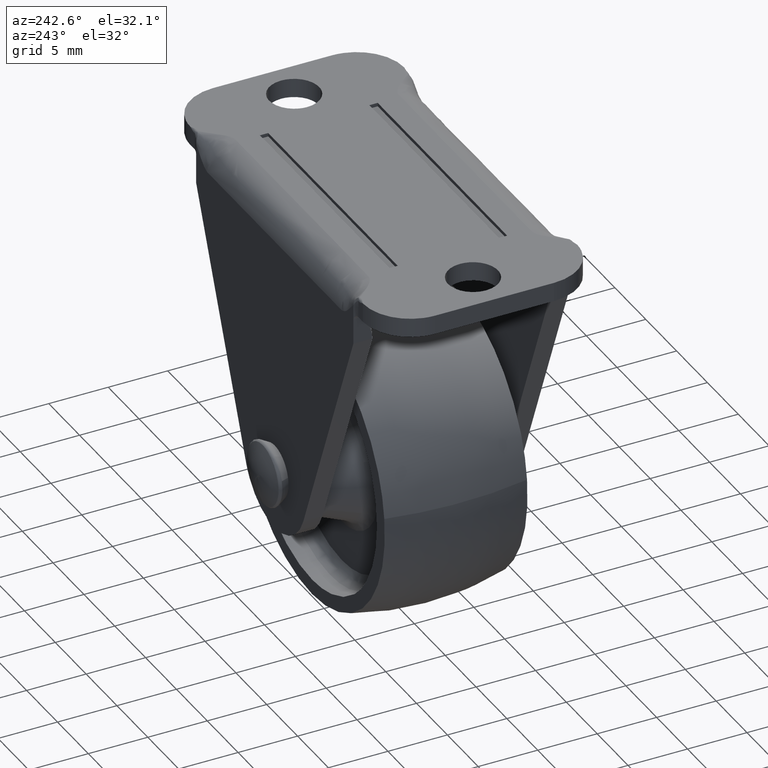
[diagram: clean part render]
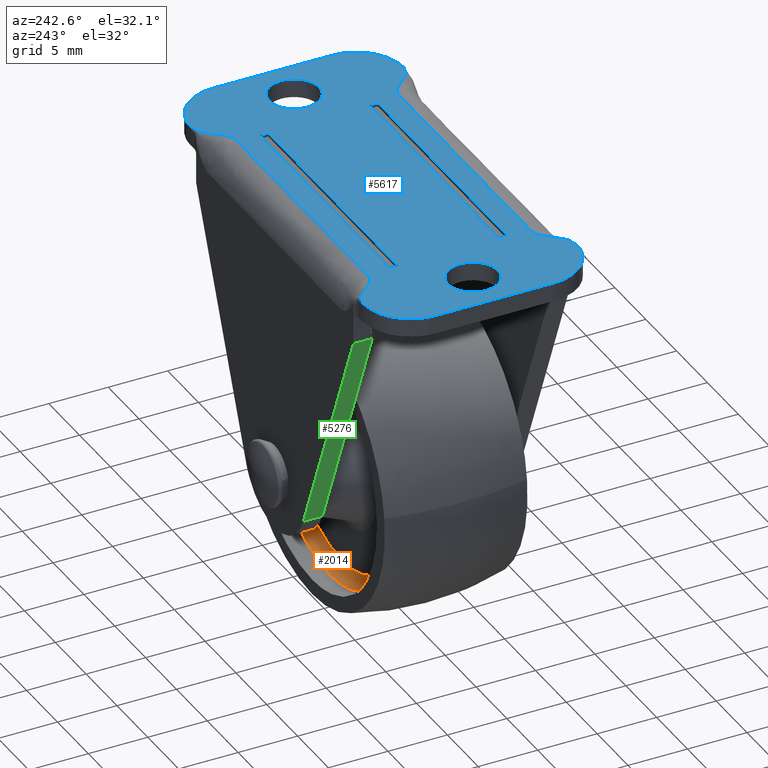
[diagram: same view with three faces highlighted in distinct colors, each labeled with its STEP entity id]
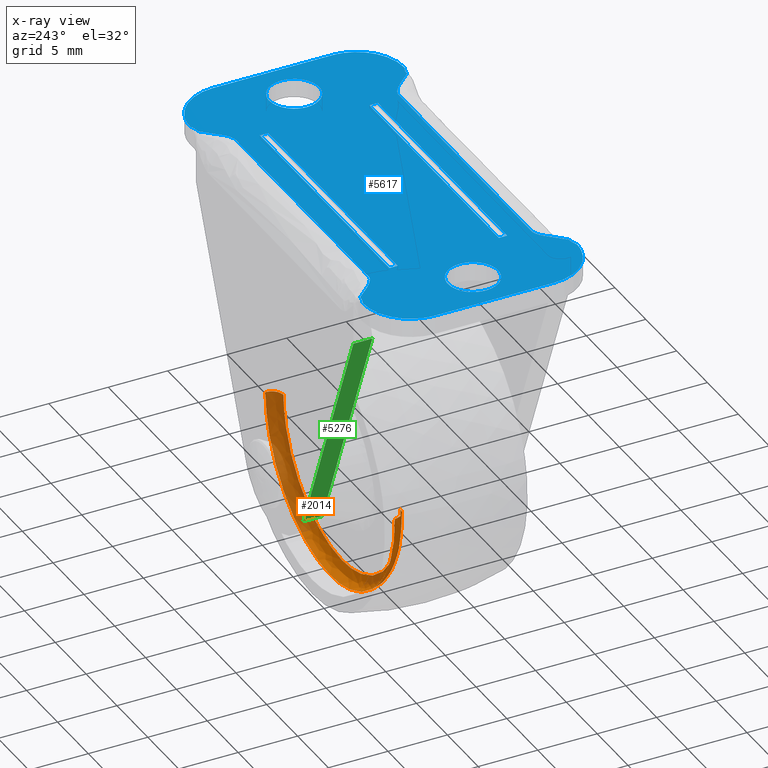
[diagram: x-ray of the same camera — body ghosted, the three highlighted faces saturated]
A machine part, auxiliary view with three faces highlighted in distinct colors.
The next image is the same camera in x-ray (body ghosted, the three faces saturated) — at least one of them is partly hidden behind the body in this view.
Their STEP definitions:

[orange] entity #2014 — the highlighted face is a freeform B-spline surface patch.
#971=CARTESIAN_POINT('',(-6.870565253109582,4.499999999999914,-7.940109136703408));
#972=VERTEX_POINT('',#971);
#978=CARTESIAN_POINT('',(0.0,4.499999999999915,-10.500000000000000));
#979=VERTEX_POINT('',#978);
#980=CARTESIAN_POINT('',(-6.870565253109582,4.499999999999914,-7.940109136703408));
#981=CARTESIAN_POINT('',(-3.912175064846057,4.499999999999916,-10.500000000000000));
#982=CARTESIAN_POINT('',(0.0,4.499999999999915,-10.500000000000000));
#990=(BOUNDED_CURVE()B_SPLINE_CURVE(2,(#980,#981,#982),.UNSPECIFIED.,.F.,.U.)B_SPLINE_CURVE_WITH_KNOTS((3,3),(0.885882141743669,1.0),.UNSPECIFIED.)CURVE()GEOMETRIC_REPRESENTATION_ITEM()RATIONAL_B_SPLINE_CURVE((0.854663301328648,0.866302612684823,1.0))REPRESENTATION_ITEM(''));
#991=EDGE_CURVE('',#972,#979,#990,.T.);
#993=CARTESIAN_POINT('',(10.496683987474089,4.499999999756547,-0.263866002177144));
#994=VERTEX_POINT('',#993);
#995=CARTESIAN_POINT('',(0.0,4.499999999999915,-10.500000000000000));
#996=CARTESIAN_POINT('',(10.239367699853679,4.499999999999914,-10.500000000000000));
#997=CARTESIAN_POINT('',(10.496683987474089,4.499999999756548,-0.263866002177144));
#1005=(BOUNDED_CURVE()B_SPLINE_CURVE(2,(#995,#996,#997),.UNSPECIFIED.,.F.,.U.)B_SPLINE_CURVE_WITH_KNOTS((3,3),(0.0,0.245579891769071),.UNSPECIFIED.)CURVE()GEOMETRIC_REPRESENTATION_ITEM()RATIONAL_B_SPLINE_CURVE((1.0,0.712285260095590,0.989826157679911))REPRESENTATION_ITEM(''));
#1006=EDGE_CURVE('',#979,#994,#1005,.T.);
#1114=CARTESIAN_POINT('',(-10.496683987474089,4.499999999756547,0.263866002177145));
#1115=VERTEX_POINT('',#1114);
#1129=CARTESIAN_POINT('',(-10.496683987474087,4.499999999756547,0.263866002177145));
#1130=CARTESIAN_POINT('',(-10.500000000000000,4.499999999999915,0.131953837317596));
#1131=CARTESIAN_POINT('',(-10.500000000000000,4.499999999999915,-8.061993E-016));
#1132=CARTESIAN_POINT('',(-10.500000000000002,4.499999999999916,-4.799564361928965));
#1133=CARTESIAN_POINT('',(-6.870565253109582,4.499999999999914,-7.940109136703408));
#1141=(BOUNDED_CURVE()B_SPLINE_CURVE(2,(#1129,#1130,#1131,#1132,#1133),.UNSPECIFIED.,.F.,.U.)B_SPLINE_CURVE_WITH_KNOTS((3,2,3),(0.745579891769071,0.750000000000000,0.885882141743669),.UNSPECIFIED.)CURVE()GEOMETRIC_REPRESENTATION_ITEM()RATIONAL_B_SPLINE_CURVE((0.989826157679911,0.994821521090957,1.0,0.840804168501724,0.854663301328648))REPRESENTATION_ITEM(''));
#1142=EDGE_CURVE('',#1115,#972,#1141,.T.);
#1926=CARTESIAN_POINT('',(-10.494251063480691,4.569724187343534,0.263804843228225));
#1927=CARTESIAN_POINT('',(-10.758055906708920,4.569724187343533,-10.230446220252464));
#1928=CARTESIAN_POINT('',(-0.263804843228228,4.569724187343534,-10.494251063480691));
#1929=CARTESIAN_POINT('',(10.230446220252462,4.569724187343533,-10.758055906708920));
#1930=CARTESIAN_POINT('',(10.494251063480691,4.569724187343534,-0.263804843228229));
#1931=CARTESIAN_POINT('',(-10.574398682234275,3.422664250343165,0.265819596817834));
#1932=CARTESIAN_POINT('',(-10.840218279052111,3.422664250343166,-10.308579085416437));
#1933=CARTESIAN_POINT('',(-0.265819596817837,3.422664250343165,-10.574398682234275));
#1934=CARTESIAN_POINT('',(10.308579085416437,3.422664250343166,-10.840218279052111));
#1935=CARTESIAN_POINT('',(10.574398682234275,3.422664250343165,-0.265819596817837));
#1936=CARTESIAN_POINT('',(-9.427671067277528,3.502407653517741,0.236993118695744));
#1937=CARTESIAN_POINT('',(-9.664664185973273,3.502407653517742,-9.190677948581778));
#1938=CARTESIAN_POINT('',(-0.236993118695747,3.502407653517741,-9.427671067277528));
#1939=CARTESIAN_POINT('',(9.190677948581778,3.502407653517742,-9.664664185973273));
#1940=CARTESIAN_POINT('',(9.427671067277528,3.502407653517741,-0.236993118695747));
#1948=(BOUNDED_SURFACE()B_SPLINE_SURFACE(2,2,((#1926,#1931,#1936),(#1927,#1932,#1937),(#1928,#1933,#1938),(#1929,#1934,#1939),(#1930,#1935,#1940)),.UNSPECIFIED.,.F.,.F.,.U.)B_SPLINE_SURFACE_WITH_KNOTS((3,2,3),(3,3),(0.0,17.392937345776598,34.785874691553197),(0.0,1.822370399371871),.UNSPECIFIED.)GEOMETRIC_REPRESENTATION_ITEM()RATIONAL_B_SPLINE_SURFACE(((0.910892942541887,0.599412921378678,0.915966645999969),(0.644098576606337,0.423848941437702,0.647686226727276),(0.910892942541887,0.599412921378678,0.915966645999969),(0.644098576606337,0.423848941437702,0.647686226727276),(0.910892942541887,0.599412921378678,0.915966645999969)))REPRESENTATION_ITEM('')SURFACE());
#1949=CARTESIAN_POINT('',(-9.496999799798440,3.499999999999915,0.238735906854155));
#1950=VERTEX_POINT('',#1949);
#1951=CARTESIAN_POINT('',(0.0,3.499999999999915,-9.500000000000000));
#1952=VERTEX_POINT('',#1951);
#1953=CARTESIAN_POINT('',(-9.496999799798440,3.499999999999916,0.238735906854155));
#1954=CARTESIAN_POINT('',(-9.500000000000000,3.499999999999915,0.119386805274140));
#1955=CARTESIAN_POINT('',(-9.500000000000000,3.499999999999915,-8.061993E-016));
#1956=CARTESIAN_POINT('',(-9.500000000000000,3.499999999999914,-9.500000000000000));
#1957=CARTESIAN_POINT('',(0.0,3.499999999999915,-9.500000000000000));
#1965=(BOUNDED_CURVE()B_SPLINE_CURVE(2,(#1953,#1954,#1955,#1956,#1957),.UNSPECIFIED.,.F.,.U.)B_SPLINE_CURVE_WITH_KNOTS((3,2,3),(0.745579891766049,0.750000000000000,1.0),.UNSPECIFIED.)CURVE()GEOMETRIC_REPRESENTATION_ITEM()RATIONAL_B_SPLINE_CURVE((0.989826157673082,0.994821521087418,1.0,0.707106781186548,1.0))REPRESENTATION_ITEM(''));
#1966=EDGE_CURVE('',#1950,#1952,#1965,.T.);
#1967=ORIENTED_EDGE('',*,*,#1966,.T.);
#1968=CARTESIAN_POINT('',(9.496999799798441,3.499999999999915,-0.238735906854152));
#1969=VERTEX_POINT('',#1968);
#1970=CARTESIAN_POINT('',(0.0,3.499999999999915,-9.500000000000000));
#1971=CARTESIAN_POINT('',(9.264189823517137,3.499999999999914,-9.499999999999998));
#1972=CARTESIAN_POINT('',(9.496999799798441,3.499999999999915,-0.238735906854152));
#1980=(BOUNDED_CURVE()B_SPLINE_CURVE(2,(#1970,#1971,#1972),.UNSPECIFIED.,.F.,.U.)B_SPLINE_CURVE_WITH_KNOTS((3,3),(0.0,0.245579891766050),.UNSPECIFIED.)CURVE()GEOMETRIC_REPRESENTATION_ITEM()RATIONAL_B_SPLINE_CURVE((1.0,0.712285260099130,0.989826157673082))REPRESENTATION_ITEM(''));
#1981=EDGE_CURVE('',#1952,#1969,#1980,.T.);
#1982=ORIENTED_EDGE('',*,*,#1981,.T.);
#1983=CARTESIAN_POINT('',(10.496683987474093,4.499999999756546,-0.263866002177144));
#1984=CARTESIAN_POINT('',(10.496683986988062,3.500000003220245,-0.263866002142810));
#1985=CARTESIAN_POINT('',(9.496999799798441,3.499999999999916,-0.238735906854152));
#1993=(BOUNDED_CURVE()B_SPLINE_CURVE(2,(#1983,#1984,#1985),.UNSPECIFIED.,.F.,.U.)B_SPLINE_CURVE_WITH_KNOTS((3,3),(-1.723441281483630,-0.263586882260754),.UNSPECIFIED.)CURVE()GEOMETRIC_REPRESENTATION_ITEM()RATIONAL_B_SPLINE_CURVE((0.883897566962041,0.626638727914770,0.888510407866817))REPRESENTATION_ITEM(''));
#1994=EDGE_CURVE('',#994,#1969,#1993,.T.);
#1995=ORIENTED_EDGE('',*,*,#1994,.F.);
#1996=ORIENTED_EDGE('',*,*,#1006,.F.);
#1997=ORIENTED_EDGE('',*,*,#991,.F.);
#1998=ORIENTED_EDGE('',*,*,#1142,.F.);
#1999=CARTESIAN_POINT('',(-10.496683987474091,4.499999999756547,0.263866002177145));
#2000=CARTESIAN_POINT('',(-10.496683986988064,3.500000003220245,0.263866002142812));
#2001=CARTESIAN_POINT('',(-9.496999799798440,3.499999999999915,0.238735906854155));
#2009=(BOUNDED_CURVE()B_SPLINE_CURVE(2,(#1999,#2000,#2001),.UNSPECIFIED.,.F.,.U.)B_SPLINE_CURVE_WITH_KNOTS((3,3),(-1.723441281483631,-0.263586882260751),.UNSPECIFIED.)CURVE()GEOMETRIC_REPRESENTATION_ITEM()RATIONAL_B_SPLINE_CURVE((0.883897566962041,0.626638727914770,0.888510407866817))REPRESENTATION_ITEM(''));
#2010=EDGE_CURVE('',#1115,#1950,#2009,.T.);
#2011=ORIENTED_EDGE('',*,*,#2010,.T.);
#2012=EDGE_LOOP('',(#1967,#1982,#1995,#1996,#1997,#1998,#2011));
#2013=FACE_OUTER_BOUND('',#2012,.T.);
#2014=ADVANCED_FACE('',(#2013),#1948,.F.);

[blue] entity #5617 — the highlighted face is a freeform B-spline surface patch.
#2486=CARTESIAN_POINT('',(-14.747871892840189,-2.085320005356449,22.500000000000000));
#2487=VERTEX_POINT('',#2486);
#2493=CARTESIAN_POINT('',(-12.400000000000000,0.0,22.500000000000000));
#2494=VERTEX_POINT('',#2493);
#2495=CARTESIAN_POINT('',(-14.747871892840188,-2.085320005356449,22.499999999999996));
#2496=CARTESIAN_POINT('',(-14.624370651330654,-2.100000000000001,22.500000000000000));
#2497=CARTESIAN_POINT('',(-14.500000000000000,-2.100000000000000,22.500000000000000));
#2498=CARTESIAN_POINT('',(-12.400000000000002,-2.100000000000000,22.500000000000000));
#2499=CARTESIAN_POINT('',(-12.400000000000000,0.0,22.500000000000000));
#2507=(BOUNDED_CURVE()B_SPLINE_CURVE(2,(#2495,#2496,#2497,#2498,#2499),.UNSPECIFIED.,.F.,.U.)B_SPLINE_CURVE_WITH_KNOTS((3,2,3),(0.229562473505758,0.250000000000000,0.500000000000000),.UNSPECIFIED.)CURVE()GEOMETRIC_REPRESENTATION_ITEM()RATIONAL_B_SPLINE_CURVE((0.956026754168508,0.976055948322065,1.0,0.707106781186548,1.0))REPRESENTATION_ITEM(''));
#2508=EDGE_CURVE('',#2487,#2494,#2507,.T.);
#2510=CARTESIAN_POINT('',(-14.371798066948950,2.096083076684217,22.500000000000000));
#2511=VERTEX_POINT('',#2510);
#2512=CARTESIAN_POINT('',(-12.400000000000000,0.0,22.500000000000000));
#2513=CARTESIAN_POINT('',(-12.400000000000002,1.975482740449377,22.500000000000004));
#2514=CARTESIAN_POINT('',(-14.371798066948953,2.096083076684217,22.499999999999996));
#2522=(BOUNDED_CURVE()B_SPLINE_CURVE(2,(#2512,#2513,#2514),.UNSPECIFIED.,.F.,.U.)B_SPLINE_CURVE_WITH_KNOTS((3,3),(0.500000000000000,0.739332962237384),.UNSPECIFIED.)CURVE()GEOMETRIC_REPRESENTATION_ITEM()RATIONAL_B_SPLINE_CURVE((1.0,0.719603993288536,0.976072041663377))REPRESENTATION_ITEM(''));
#2523=EDGE_CURVE('',#2494,#2511,#2522,.T.);
#2597=CARTESIAN_POINT('',(-16.600000000000001,0.0,22.500000000000000));
#2598=VERTEX_POINT('',#2597);
#2599=CARTESIAN_POINT('',(-14.371798066948955,2.096083076684217,22.499999999999996));
#2600=CARTESIAN_POINT('',(-14.435839197045034,2.100000000000000,22.499999999999996));
#2601=CARTESIAN_POINT('',(-14.500000000000000,2.100000000000000,22.500000000000000));
#2602=CARTESIAN_POINT('',(-16.600000000000001,2.100000000000000,22.500000000000000));
#2603=CARTESIAN_POINT('',(-16.600000000000001,0.0,22.500000000000000));
#2611=(BOUNDED_CURVE()B_SPLINE_CURVE(2,(#2599,#2600,#2601,#2602,#2603),.UNSPECIFIED.,.F.,.U.)B_SPLINE_CURVE_WITH_KNOTS((3,2,3),(0.739332962237383,0.750000000000000,1.0),.UNSPECIFIED.)CURVE()GEOMETRIC_REPRESENTATION_ITEM()RATIONAL_B_SPLINE_CURVE((0.976072041663375,0.987502787898010,1.0,0.707106781186548,1.0))REPRESENTATION_ITEM(''));
#2612=EDGE_CURVE('',#2511,#2598,#2611,.T.);
#2614=CARTESIAN_POINT('',(-16.600000000000001,0.0,22.500000000000000));
#2615=CARTESIAN_POINT('',(-16.599999999999991,-1.865166504387994,22.499999999999989));
#2616=CARTESIAN_POINT('',(-14.747871892840186,-2.085320005356449,22.500000000000004));
#2624=(BOUNDED_CURVE()B_SPLINE_CURVE(2,(#2614,#2615,#2616),.UNSPECIFIED.,.F.,.U.)B_SPLINE_CURVE_WITH_KNOTS((3,3),(0.0,0.229562473505758),.UNSPECIFIED.)CURVE()GEOMETRIC_REPRESENTATION_ITEM()RATIONAL_B_SPLINE_CURVE((1.0,0.731050832864483,0.956026754168508))REPRESENTATION_ITEM(''));
#2625=EDGE_CURVE('',#2598,#2487,#2624,.T.);
#2672=CARTESIAN_POINT('',(14.252128107159811,-2.085320005356449,22.500000000000000));
#2673=VERTEX_POINT('',#2672);
#2679=CARTESIAN_POINT('',(16.600000000000001,0.0,22.500000000000000));
#2680=VERTEX_POINT('',#2679);
#2681=CARTESIAN_POINT('',(14.252128107159820,-2.085320005356449,22.500000000000004));
#2682=CARTESIAN_POINT('',(14.375629348669353,-2.100000000000000,22.499999999999996));
#2683=CARTESIAN_POINT('',(14.500000000000000,-2.100000000000000,22.500000000000000));
#2684=CARTESIAN_POINT('',(16.600000000000001,-2.100000000000000,22.500000000000000));
#2685=CARTESIAN_POINT('',(16.600000000000001,0.0,22.500000000000000));
#2693=(BOUNDED_CURVE()B_SPLINE_CURVE(2,(#2681,#2682,#2683,#2684,#2685),.UNSPECIFIED.,.F.,.U.)B_SPLINE_CURVE_WITH_KNOTS((3,2,3),(0.229562473505758,0.250000000000000,0.500000000000000),.UNSPECIFIED.)CURVE()GEOMETRIC_REPRESENTATION_ITEM()RATIONAL_B_SPLINE_CURVE((0.956026754168508,0.976055948322065,1.0,0.707106781186548,1.0))REPRESENTATION_ITEM(''));
#2694=EDGE_CURVE('',#2673,#2680,#2693,.T.);
#2696=CARTESIAN_POINT('',(14.628201933051050,2.096083076684217,22.500000000000000));
#2697=VERTEX_POINT('',#2696);
#2698=CARTESIAN_POINT('',(16.600000000000001,0.0,22.500000000000000));
#2699=CARTESIAN_POINT('',(16.600000000000009,1.975482740449377,22.500000000000004));
#2700=CARTESIAN_POINT('',(14.628201933051054,2.096083076684217,22.499999999999996));
#2708=(BOUNDED_CURVE()B_SPLINE_CURVE(2,(#2698,#2699,#2700),.UNSPECIFIED.,.F.,.U.)B_SPLINE_CURVE_WITH_KNOTS((3,3),(0.500000000000000,0.739332962237384),.UNSPECIFIED.)CURVE()GEOMETRIC_REPRESENTATION_ITEM()RATIONAL_B_SPLINE_CURVE((1.0,0.719603993288536,0.976072041663377))REPRESENTATION_ITEM(''));
#2709=EDGE_CURVE('',#2680,#2697,#2708,.T.);
#2783=CARTESIAN_POINT('',(12.400000000000000,0.0,22.500000000000000));
#2784=VERTEX_POINT('',#2783);
#2785=CARTESIAN_POINT('',(14.628201933051045,2.096083076684217,22.499999999999996));
#2786=CARTESIAN_POINT('',(14.564160802954969,2.100000000000000,22.499999999999996));
#2787=CARTESIAN_POINT('',(14.500000000000000,2.100000000000000,22.500000000000000));
#2788=CARTESIAN_POINT('',(12.400000000000002,2.100000000000000,22.500000000000000));
#2789=CARTESIAN_POINT('',(12.400000000000000,0.0,22.500000000000000));
#2797=(BOUNDED_CURVE()B_SPLINE_CURVE(2,(#2785,#2786,#2787,#2788,#2789),.UNSPECIFIED.,.F.,.U.)B_SPLINE_CURVE_WITH_KNOTS((3,2,3),(0.739332962237383,0.750000000000000,1.0),.UNSPECIFIED.)CURVE()GEOMETRIC_REPRESENTATION_ITEM()RATIONAL_B_SPLINE_CURVE((0.976072041663375,0.987502787898010,1.0,0.707106781186548,1.0))REPRESENTATION_ITEM(''));
#2798=EDGE_CURVE('',#2697,#2784,#2797,.T.);
#2800=CARTESIAN_POINT('',(12.400000000000000,0.0,22.500000000000000));
#2801=CARTESIAN_POINT('',(12.400000000000002,-1.865166504387994,22.499999999999989));
#2802=CARTESIAN_POINT('',(14.252128107159820,-2.085320005356449,22.500000000000004));
#2810=(BOUNDED_CURVE()B_SPLINE_CURVE(2,(#2800,#2801,#2802),.UNSPECIFIED.,.F.,.U.)B_SPLINE_CURVE_WITH_KNOTS((3,3),(0.0,0.229562473505758),.UNSPECIFIED.)CURVE()GEOMETRIC_REPRESENTATION_ITEM()RATIONAL_B_SPLINE_CURVE((1.0,0.731050832864483,0.956026754168508))REPRESENTATION_ITEM(''));
#2811=EDGE_CURVE('',#2784,#2673,#2810,.T.);
#3234=CARTESIAN_POINT('',(10.500000000000000,4.250000000000000,22.500000000000000));
#3235=VERTEX_POINT('',#3234);
#3236=CARTESIAN_POINT('',(10.500000000000000,4.949997000000111,22.500000000000000));
#3237=VERTEX_POINT('',#3236);
#3238=CARTESIAN_POINT('',(10.500000000000000,4.250000000000000,22.500000000000000));
#3239=CARTESIAN_POINT('',(10.500000000000000,4.949997000000111,22.500000000000000));
#3240=QUASI_UNIFORM_CURVE('',1,(#3238,#3239),.UNSPECIFIED.,.F.,.U.);
#3241=EDGE_CURVE('',#3235,#3237,#3240,.T.);
#3262=CARTESIAN_POINT('',(-10.500000000000000,4.250000000000000,22.500000000000000));
#3263=VERTEX_POINT('',#3262);
#3264=CARTESIAN_POINT('',(-10.500000000000000,4.250000000000000,22.500000000000000));
#3265=CARTESIAN_POINT('',(10.500000000000000,4.250000000000000,22.500000000000000));
#3266=QUASI_UNIFORM_CURVE('',1,(#3264,#3265),.UNSPECIFIED.,.F.,.U.);
#3267=EDGE_CURVE('',#3263,#3235,#3266,.T.);
#3284=CARTESIAN_POINT('',(-10.500000000000000,4.949997000000111,22.500000000000000));
#3285=VERTEX_POINT('',#3284);
#3286=CARTESIAN_POINT('',(-10.500000000000000,4.949997000000111,22.500000000000000));
#3287=CARTESIAN_POINT('',(-10.500000000000000,4.250000000000000,22.500000000000000));
#3288=QUASI_UNIFORM_CURVE('',1,(#3286,#3287),.UNSPECIFIED.,.F.,.U.);
#3289=EDGE_CURVE('',#3285,#3263,#3288,.T.);
#3306=CARTESIAN_POINT('',(10.500000000000000,4.949997000000111,22.500000000000000));
#3307=CARTESIAN_POINT('',(-10.500000000000000,4.949997000000111,22.500000000000000));
#3308=QUASI_UNIFORM_CURVE('',1,(#3306,#3307),.UNSPECIFIED.,.F.,.U.);
#3309=EDGE_CURVE('',#3237,#3285,#3308,.T.);
#3358=CARTESIAN_POINT('',(-10.500000000000000,-4.250000000000000,22.500000000000000));
#3359=VERTEX_POINT('',#3358);
#3360=CARTESIAN_POINT('',(-10.500000000000000,-4.949997000000001,22.500000000000000));
#3361=VERTEX_POINT('',#3360);
#3362=CARTESIAN_POINT('',(-10.500000000000000,-4.250000000000000,22.500000000000000));
#3363=CARTESIAN_POINT('',(-10.500000000000000,-4.949997000000001,22.500000000000000));
#3364=QUASI_UNIFORM_CURVE('',1,(#3362,#3363),.UNSPECIFIED.,.F.,.U.);
#3365=EDGE_CURVE('',#3359,#3361,#3364,.T.);
#3386=CARTESIAN_POINT('',(10.500000000000000,-4.250000000000000,22.500000000000000));
#3387=VERTEX_POINT('',#3386);
#3388=CARTESIAN_POINT('',(10.500000000000000,-4.250000000000000,22.500000000000000));
#3389=CARTESIAN_POINT('',(-10.500000000000000,-4.250000000000000,22.500000000000000));
#3390=QUASI_UNIFORM_CURVE('',1,(#3388,#3389),.UNSPECIFIED.,.F.,.U.);
#3391=EDGE_CURVE('',#3387,#3359,#3390,.T.);
#3408=CARTESIAN_POINT('',(10.500000000000000,-4.949997000000001,22.500000000000000));
#3409=VERTEX_POINT('',#3408);
#3410=CARTESIAN_POINT('',(10.500000000000000,-4.949997000000001,22.500000000000000));
#3411=CARTESIAN_POINT('',(10.500000000000000,-4.250000000000000,22.500000000000000));
#3412=QUASI_UNIFORM_CURVE('',1,(#3410,#3411),.UNSPECIFIED.,.F.,.U.);
#3413=EDGE_CURVE('',#3409,#3387,#3412,.T.);
#3430=CARTESIAN_POINT('',(-10.500000000000000,-4.949997000000001,22.500000000000000));
#3431=CARTESIAN_POINT('',(10.500000000000000,-4.949997000000001,22.500000000000000));
#3432=QUASI_UNIFORM_CURVE('',1,(#3430,#3431),.UNSPECIFIED.,.F.,.U.);
#3433=EDGE_CURVE('',#3361,#3409,#3432,.T.);
#4175=CARTESIAN_POINT('',(13.999999000000001,-9.0,22.500000000000000));
#4176=VERTEX_POINT('',#4175);
#4186=CARTESIAN_POINT('',(13.276782687642800,-8.800000000000001,22.500000000000000));
#4187=VERTEX_POINT('',#4186);
#4188=CARTESIAN_POINT('',(13.276782687642800,-8.800000000000001,22.500000000000000));
#4189=CARTESIAN_POINT('',(13.517854791761859,-8.800000000000001,22.500000000000000));
#4190=CARTESIAN_POINT('',(13.758926895880920,-8.900000000000000,22.500000000000000));
#4191=CARTESIAN_POINT('',(13.999999000000001,-9.0,22.500000000000000));
#4192=QUASI_UNIFORM_CURVE('',3,(#4188,#4189,#4190,#4191),.UNSPECIFIED.,.F.,.U.);
#4193=EDGE_CURVE('',#4187,#4176,#4192,.T.);
#4239=CARTESIAN_POINT('',(13.119193356339739,-8.765342525882272,22.500000000000000));
#4240=VERTEX_POINT('',#4239);
#4274=CARTESIAN_POINT('',(13.119193356339739,-8.765342525882272,22.500000000000000));
#4275=CARTESIAN_POINT('',(13.276782687642800,-8.800000000000001,22.500000000000000));
#4276=QUASI_UNIFORM_CURVE('',1,(#4274,#4275),.UNSPECIFIED.,.F.,.U.);
#4277=EDGE_CURVE('',#4240,#4187,#4276,.T.);
#4338=CARTESIAN_POINT('',(-13.119193356339840,-8.765342525886499,22.500000000000000));
#4339=VERTEX_POINT('',#4338);
#4373=CARTESIAN_POINT('',(-13.119193356339840,-8.765342525886499,22.500000000000000));
#4374=CARTESIAN_POINT('',(-12.996128904229939,-8.626895017258692,22.500000000000000));
#4375=CARTESIAN_POINT('',(-12.873064452114990,-8.488447508629392,22.500000000000000));
#4376=CARTESIAN_POINT('',(-12.750000000000000,-8.350000000000090,22.500000000000000));
#4377=CARTESIAN_POINT('',(-12.083333333333419,-7.600000000000090,22.500000000000000));
#4378=CARTESIAN_POINT('',(-11.416666666666760,-6.850000000000090,22.500000000000000));
#4379=CARTESIAN_POINT('',(-10.750000000000000,-6.850000000000090,22.500000000000000));
#4380=CARTESIAN_POINT('',(-3.583333333333430,-6.850000000000090,22.500000000000000));
#4381=CARTESIAN_POINT('',(3.583333333333240,-6.850000000000090,22.500000000000000));
#4382=CARTESIAN_POINT('',(10.750000000000000,-6.850000000000090,22.500000000000000));
#4383=CARTESIAN_POINT('',(11.416666666666600,-6.850000000000090,22.500000000000000));
#4384=CARTESIAN_POINT('',(12.083333333333300,-7.600000000000090,22.500000000000000));
#4385=CARTESIAN_POINT('',(12.750000000000000,-8.350000000000090,22.500000000000000));
#4386=CARTESIAN_POINT('',(12.873064452113240,-8.488447508627488,22.500000000000000));
#4387=CARTESIAN_POINT('',(12.996128904226490,-8.626895017254881,22.500000000000000));
#4388=CARTESIAN_POINT('',(13.119193356339730,-8.765342525882263,22.500000000000000));
#4389=B_SPLINE_CURVE_WITH_KNOTS('',3,(#4373,#4374,#4375,#4376,#4377,#4378,#4379,#4380,#4381,#4382,#4383,#4384,#4385,#4386,#4387,#4388),.UNSPECIFIED.,.F.,.U.,(4,3,3,3,3,4),(0.012700205501018,0.026413536937680,0.100701609574907,0.899298390425088,0.973586463062318,0.987299794498792),.UNSPECIFIED.);
#4390=EDGE_CURVE('',#4339,#4240,#4389,.T.);
#4423=CARTESIAN_POINT('',(-13.276782687642880,-8.800000000000001,22.500000000000000));
#4424=VERTEX_POINT('',#4423);
#4453=CARTESIAN_POINT('',(-13.276782687642880,-8.800000000000001,22.500000000000000));
#4454=CARTESIAN_POINT('',(-13.119193356339840,-8.765342525886499,22.500000000000000));
#4455=QUASI_UNIFORM_CURVE('',1,(#4453,#4454),.UNSPECIFIED.,.F.,.U.);
#4456=EDGE_CURVE('',#4424,#4339,#4455,.T.);
#4481=CARTESIAN_POINT('',(-13.999998999999899,-9.0,22.500000000000000));
#4482=VERTEX_POINT('',#4481);
#4483=CARTESIAN_POINT('',(-13.999998999999899,-9.0,22.500000000000000));
#4484=CARTESIAN_POINT('',(-13.758926895880901,-8.900000000000000,22.500000000000000));
#4485=CARTESIAN_POINT('',(-13.517854791761900,-8.800000000000001,22.500000000000000));
#4486=CARTESIAN_POINT('',(-13.276782687642880,-8.800000000000001,22.500000000000000));
#4487=QUASI_UNIFORM_CURVE('',3,(#4483,#4484,#4485,#4486),.UNSPECIFIED.,.F.,.U.);
#4488=EDGE_CURVE('',#4482,#4424,#4487,.T.);
#4741=CARTESIAN_POINT('',(-13.999998999999899,9.000000000000108,22.500000000000000));
#4742=VERTEX_POINT('',#4741);
#4752=CARTESIAN_POINT('',(-13.276782687642701,8.800000000000109,22.500000000000000));
#4753=VERTEX_POINT('',#4752);
#4754=CARTESIAN_POINT('',(-13.276782687642701,8.800000000000109,22.500000000000000));
#4755=CARTESIAN_POINT('',(-13.517854791761760,8.800000000000109,22.500000000000000));
#4756=CARTESIAN_POINT('',(-13.758926895880821,8.900000000000109,22.500000000000000));
#4757=CARTESIAN_POINT('',(-13.999998999999899,9.000000000000108,22.500000000000000));
#4758=QUASI_UNIFORM_CURVE('',3,(#4754,#4755,#4756,#4757),.UNSPECIFIED.,.F.,.U.);
#4759=EDGE_CURVE('',#4753,#4742,#4758,.T.);
#4805=CARTESIAN_POINT('',(-13.119193356340080,8.765342525882550,22.500000000000000));
#4806=VERTEX_POINT('',#4805);
#4840=CARTESIAN_POINT('',(-13.119193356340080,8.765342525882550,22.500000000000000));
#4841=CARTESIAN_POINT('',(-13.276782687642701,8.800000000000109,22.500000000000000));
#4842=QUASI_UNIFORM_CURVE('',1,(#4840,#4841),.UNSPECIFIED.,.F.,.U.);
#4843=EDGE_CURVE('',#4806,#4753,#4842,.T.);
#4904=CARTESIAN_POINT('',(13.119193356339720,8.765342525886720,22.500000000000000));
#4905=VERTEX_POINT('',#4904);
#4939=CARTESIAN_POINT('',(13.119193356339720,8.765342525886720,22.500000000000000));
#4940=CARTESIAN_POINT('',(12.996128904229900,8.626895017258734,22.500000000000000));
#4941=CARTESIAN_POINT('',(12.873064452114949,8.488447508629413,22.500000000000000));
#4942=CARTESIAN_POINT('',(12.750000000000000,8.350000000000090,22.500000000000000));
#4943=CARTESIAN_POINT('',(12.083333333333320,7.600000000000090,22.500000000000000));
#4944=CARTESIAN_POINT('',(11.416666666666661,6.850000000000090,22.500000000000000));
#4945=CARTESIAN_POINT('',(10.750000000000000,6.850000000000090,22.500000000000000));
#4946=CARTESIAN_POINT('',(3.583333333333330,6.850000000000090,22.500000000000000));
#4947=CARTESIAN_POINT('',(-3.583333333333335,6.850000000000090,22.500000000000000));
#4948=CARTESIAN_POINT('',(-10.750000000000000,6.850000000000090,22.500000000000000));
#4949=CARTESIAN_POINT('',(-11.416666666666700,6.850000000000090,22.500000000000000));
#4950=CARTESIAN_POINT('',(-12.083333333333400,7.600000000000090,22.500000000000000));
#4951=CARTESIAN_POINT('',(-12.750000000000000,8.350000000000090,22.500000000000000));
#4952=CARTESIAN_POINT('',(-12.873064452113370,8.488447508627576,22.500000000000000));
#4953=CARTESIAN_POINT('',(-12.996128904226730,8.626895017255061,22.500000000000000));
#4954=CARTESIAN_POINT('',(-13.119193356340070,8.765342525882533,22.500000000000000));
#4955=B_SPLINE_CURVE_WITH_KNOTS('',3,(#4939,#4940,#4941,#4942,#4943,#4944,#4945,#4946,#4947,#4948,#4949,#4950,#4951,#4952,#4953,#4954),.UNSPECIFIED.,.F.,.U.,(4,3,3,3,3,4),(0.012700205501016,0.026413536937680,0.100701609574907,0.899298390425088,0.973586463062318,0.987299794498801),.UNSPECIFIED.);
#4956=EDGE_CURVE('',#4905,#4806,#4955,.T.);
#4989=CARTESIAN_POINT('',(13.276782687642600,8.800000000000109,22.500000000000000));
#4990=VERTEX_POINT('',#4989);
#5019=CARTESIAN_POINT('',(13.276782687642600,8.800000000000109,22.500000000000000));
#5020=CARTESIAN_POINT('',(13.119193356339720,8.765342525886720,22.500000000000000));
#5021=QUASI_UNIFORM_CURVE('',1,(#5019,#5020),.UNSPECIFIED.,.F.,.U.);
#5022=EDGE_CURVE('',#4990,#4905,#5021,.T.);
#5047=CARTESIAN_POINT('',(13.999999000000001,9.000000000000108,22.500000000000000));
#5048=VERTEX_POINT('',#5047);
#5049=CARTESIAN_POINT('',(13.999999000000001,9.000000000000108,22.500000000000000));
#5050=CARTESIAN_POINT('',(13.758926895880860,8.900000000000109,22.500000000000000));
#5051=CARTESIAN_POINT('',(13.517854791761740,8.800000000000109,22.500000000000000));
#5052=CARTESIAN_POINT('',(13.276782687642600,8.800000000000109,22.500000000000000));
#5053=QUASI_UNIFORM_CURVE('',3,(#5049,#5050,#5051,#5052),.UNSPECIFIED.,.F.,.U.);
#5054=EDGE_CURVE('',#5048,#4990,#5053,.T.);
#5506=CARTESIAN_POINT('',(-19.798198025823190,9.899099965112621,22.500000000000000));
#5507=CARTESIAN_POINT('',(19.798197060228201,9.899099965112621,22.500000000000000));
#5508=CARTESIAN_POINT('',(-19.798198025823190,-9.899100447910136,22.500000000000000));
#5509=CARTESIAN_POINT('',(19.798197060228201,-9.899100447910136,22.500000000000000));
#5510=B_SPLINE_SURFACE_WITH_KNOTS('',1,1,((#5506,#5508),(#5507,#5509)),.UNSPECIFIED.,.F.,.F.,.U.,(2,2),(2,2),(0.0,39.596395086051388),(0.0,19.798200413022759),.UNSPECIFIED.);
#5511=ORIENTED_EDGE('',*,*,#4277,.T.);
#5512=ORIENTED_EDGE('',*,*,#4193,.T.);
#5513=CARTESIAN_POINT('',(17.999999000000098,-5.0,22.500000000000000));
#5514=VERTEX_POINT('',#5513);
#5515=CARTESIAN_POINT('',(13.999999000000001,-9.000000000000002,22.500000000000000));
#5516=CARTESIAN_POINT('',(17.999999000000006,-9.000000000000002,22.500000000000000));
#5517=CARTESIAN_POINT('',(17.999999000000098,-5.0,22.500000000000000));
#5525=(BOUNDED_CURVE()B_SPLINE_CURVE(2,(#5515,#5516,#5517),.UNSPECIFIED.,.F.,.U.)CURVE()GEOMETRIC_REPRESENTATION_ITEM()QUASI_UNIFORM_CURVE()RATIONAL_B_SPLINE_CURVE((1.0,0.707106781186548,1.0))REPRESENTATION_ITEM(''));
#5526=EDGE_CURVE('',#4176,#5514,#5525,.T.);
#5527=ORIENTED_EDGE('',*,*,#5526,.T.);
#5528=CARTESIAN_POINT('',(17.999998999998500,5.000003490658620,22.500000000000000));
#5529=VERTEX_POINT('',#5528);
#5530=CARTESIAN_POINT('',(17.999998999998500,5.000003490658620,22.500000000000000));
#5531=CARTESIAN_POINT('',(17.999999000000098,-5.0,22.500000000000000));
#5532=QUASI_UNIFORM_CURVE('',1,(#5530,#5531),.UNSPECIFIED.,.F.,.U.);
#5533=EDGE_CURVE('',#5529,#5514,#5532,.T.);
#5534=ORIENTED_EDGE('',*,*,#5533,.F.);
#5535=CARTESIAN_POINT('',(17.999998999998478,5.000003490658619,22.500000000000000));
#5536=CARTESIAN_POINT('',(17.999995509343012,9.000000000000110,22.499999999999996));
#5537=CARTESIAN_POINT('',(13.999999000000001,9.000000000000110,22.500000000000000));
#5545=(BOUNDED_CURVE()B_SPLINE_CURVE(2,(#5535,#5536,#5537),.UNSPECIFIED.,.F.,.U.)CURVE()GEOMETRIC_REPRESENTATION_ITEM()QUASI_UNIFORM_CURVE()RATIONAL_B_SPLINE_CURVE((1.0,0.707107089720018,1.0))REPRESENTATION_ITEM(''));
#5546=EDGE_CURVE('',#5529,#5048,#5545,.T.);
#5547=ORIENTED_EDGE('',*,*,#5546,.T.);
#5548=ORIENTED_EDGE('',*,*,#5054,.T.);
#5549=ORIENTED_EDGE('',*,*,#5022,.T.);
#5550=ORIENTED_EDGE('',*,*,#4956,.T.);
#5551=ORIENTED_EDGE('',*,*,#4843,.T.);
#5552=ORIENTED_EDGE('',*,*,#4759,.T.);
#5553=CARTESIAN_POINT('',(-17.999998999999899,5.000000000000110,22.500000000000000));
#5554=VERTEX_POINT('',#5553);
#5555=CARTESIAN_POINT('',(-13.999998999999899,9.000000000000110,22.500000000000000));
#5556=CARTESIAN_POINT('',(-17.999998999999896,9.000000000000110,22.500000000000000));
#5557=CARTESIAN_POINT('',(-17.999998999999899,5.000000000000110,22.500000000000000));
#5565=(BOUNDED_CURVE()B_SPLINE_CURVE(2,(#5555,#5556,#5557),.UNSPECIFIED.,.F.,.U.)CURVE()GEOMETRIC_REPRESENTATION_ITEM()QUASI_UNIFORM_CURVE()RATIONAL_B_SPLINE_CURVE((1.0,0.707106781186548,1.0))REPRESENTATION_ITEM(''));
#5566=EDGE_CURVE('',#4742,#5554,#5565,.T.);
#5567=ORIENTED_EDGE('',*,*,#5566,.T.);
#5568=CARTESIAN_POINT('',(-17.999998999998400,-5.000003490658500,22.500000000000000));
#5569=VERTEX_POINT('',#5568);
#5570=CARTESIAN_POINT('',(-17.999998999998400,-5.000003490658500,22.500000000000000));
#5571=CARTESIAN_POINT('',(-17.999998999999899,5.000000000000110,22.500000000000000));
#5572=QUASI_UNIFORM_CURVE('',1,(#5570,#5571),.UNSPECIFIED.,.F.,.U.);
#5573=EDGE_CURVE('',#5569,#5554,#5572,.T.);
#5574=ORIENTED_EDGE('',*,*,#5573,.F.);
#5575=CARTESIAN_POINT('',(-17.999998999998379,-5.000003490658500,22.500000000000000));
#5576=CARTESIAN_POINT('',(-17.999995509342916,-9.000000000000004,22.500000000000004));
#5577=CARTESIAN_POINT('',(-13.999998999999899,-9.000000000000002,22.500000000000000));
#5585=(BOUNDED_CURVE()B_SPLINE_CURVE(2,(#5575,#5576,#5577),.UNSPECIFIED.,.F.,.U.)CURVE()GEOMETRIC_REPRESENTATION_ITEM()QUASI_UNIFORM_CURVE()RATIONAL_B_SPLINE_CURVE((1.0,0.707107089720017,1.0))REPRESENTATION_ITEM(''));
#5586=EDGE_CURVE('',#5569,#4482,#5585,.T.);
#5587=ORIENTED_EDGE('',*,*,#5586,.T.);
#5588=ORIENTED_EDGE('',*,*,#4488,.T.);
#5589=ORIENTED_EDGE('',*,*,#4456,.T.);
#5590=ORIENTED_EDGE('',*,*,#4390,.T.);
#5591=EDGE_LOOP('',(#5511,#5512,#5527,#5534,#5547,#5548,#5549,#5550,#5551,#5552,#5567,#5574,#5587,#5588,#5589,#5590));
#5592=FACE_OUTER_BOUND('',#5591,.T.);
#5593=ORIENTED_EDGE('',*,*,#3433,.F.);
#5594=ORIENTED_EDGE('',*,*,#3365,.F.);
#5595=ORIENTED_EDGE('',*,*,#3391,.F.);
#5596=ORIENTED_EDGE('',*,*,#3413,.F.);
#5597=EDGE_LOOP('',(#5593,#5594,#5595,#5596));
#5598=FACE_BOUND('',#5597,.T.);
#5599=ORIENTED_EDGE('',*,*,#3309,.F.);
#5600=ORIENTED_EDGE('',*,*,#3241,.F.);
#5601=ORIENTED_EDGE('',*,*,#3267,.F.);
#5602=ORIENTED_EDGE('',*,*,#3289,.F.);
#5603=EDGE_LOOP('',(#5599,#5600,#5601,#5602));
#5604=FACE_BOUND('',#5603,.T.);
#5605=ORIENTED_EDGE('',*,*,#2709,.F.);
#5606=ORIENTED_EDGE('',*,*,#2694,.F.);
#5607=ORIENTED_EDGE('',*,*,#2811,.F.);
#5608=ORIENTED_EDGE('',*,*,#2798,.F.);
#5609=EDGE_LOOP('',(#5605,#5606,#5607,#5608));
#5610=FACE_BOUND('',#5609,.T.);
#5611=ORIENTED_EDGE('',*,*,#2523,.F.);
#5612=ORIENTED_EDGE('',*,*,#2508,.F.);
#5613=ORIENTED_EDGE('',*,*,#2625,.F.);
#5614=ORIENTED_EDGE('',*,*,#2612,.F.);
#5615=EDGE_LOOP('',(#5611,#5612,#5613,#5614));
#5616=FACE_BOUND('',#5615,.T.);
#5617=ADVANCED_FACE('',(#5592,#5598,#5604,#5610,#5616),#5510,.F.);

[green] entity #5276 — the highlighted face is a freeform B-spline surface patch.
#4024=CARTESIAN_POINT('',(-12.750000000000000,7.550002999999999,18.299998999999900));
#4025=VERTEX_POINT('',#4024);
#5243=CARTESIAN_POINT('',(-4.233663348728882,7.470083120975327,-2.873126958117251));
#5244=CARTESIAN_POINT('',(-13.155153796310200,7.470083120975327,19.307283318710439));
#5245=CARTESIAN_POINT('',(-4.233663348728882,9.229921507091923,-2.873126958117251));
#5246=CARTESIAN_POINT('',(-13.155153796310200,9.229921507091923,19.307283318710439));
#5247=B_SPLINE_SURFACE_WITH_KNOTS('',1,1,((#5243,#5245),(#5244,#5246)),.UNSPECIFIED.,.F.,.F.,.U.,(2,2),(2,2),(0.0,23.907396174713131),(0.041708370325714,0.958291435959190),.UNSPECIFIED.);
#5248=CARTESIAN_POINT('',(-4.638816999999910,7.550002999999999,-1.865843000000095));
#5249=VERTEX_POINT('',#5248);
#5250=CARTESIAN_POINT('',(-12.750000000000000,7.550002999999999,18.299998999999900));
#5251=CARTESIAN_POINT('',(-4.638816999999910,7.550002999999999,-1.865843000000095));
#5252=QUASI_UNIFORM_CURVE('',1,(#5250,#5251),.UNSPECIFIED.,.F.,.U.);
#5253=EDGE_CURVE('',#4025,#5249,#5252,.T.);
#5254=ORIENTED_EDGE('',*,*,#5253,.F.);
#5255=CARTESIAN_POINT('',(-12.750000000000000,9.150002000000001,18.299998999999900));
#5256=VERTEX_POINT('',#5255);
#5257=CARTESIAN_POINT('',(-12.750000000000000,9.150002000000001,18.299998999999900));
#5258=CARTESIAN_POINT('',(-12.750000000000000,7.550002999999999,18.299998999999900));
#5259=QUASI_UNIFORM_CURVE('',1,(#5257,#5258),.UNSPECIFIED.,.F.,.U.);
#5260=EDGE_CURVE('',#5256,#4025,#5259,.T.);
#5261=ORIENTED_EDGE('',*,*,#5260,.F.);
#5262=CARTESIAN_POINT('',(-4.638816999999900,9.150002000000001,-1.865843000000100));
#5263=VERTEX_POINT('',#5262);
#5264=CARTESIAN_POINT('',(-12.750000000000000,9.150002000000001,18.299998999999900));
#5265=CARTESIAN_POINT('',(-4.638816999999900,9.150002000000001,-1.865843000000100));
#5266=QUASI_UNIFORM_CURVE('',1,(#5264,#5265),.UNSPECIFIED.,.F.,.U.);
#5267=EDGE_CURVE('',#5256,#5263,#5266,.T.);
#5268=ORIENTED_EDGE('',*,*,#5267,.T.);
#5269=CARTESIAN_POINT('',(-4.638816999999900,9.150002000000001,-1.865843000000100));
#5270=CARTESIAN_POINT('',(-4.638816999999910,7.550002999999999,-1.865843000000095));
#5271=QUASI_UNIFORM_CURVE('',1,(#5269,#5270),.UNSPECIFIED.,.F.,.U.);
#5272=EDGE_CURVE('',#5263,#5249,#5271,.T.);
#5273=ORIENTED_EDGE('',*,*,#5272,.T.);
#5274=EDGE_LOOP('',(#5254,#5261,#5268,#5273));
#5275=FACE_OUTER_BOUND('',#5274,.T.);
#5276=ADVANCED_FACE('',(#5275),#5247,.T.);